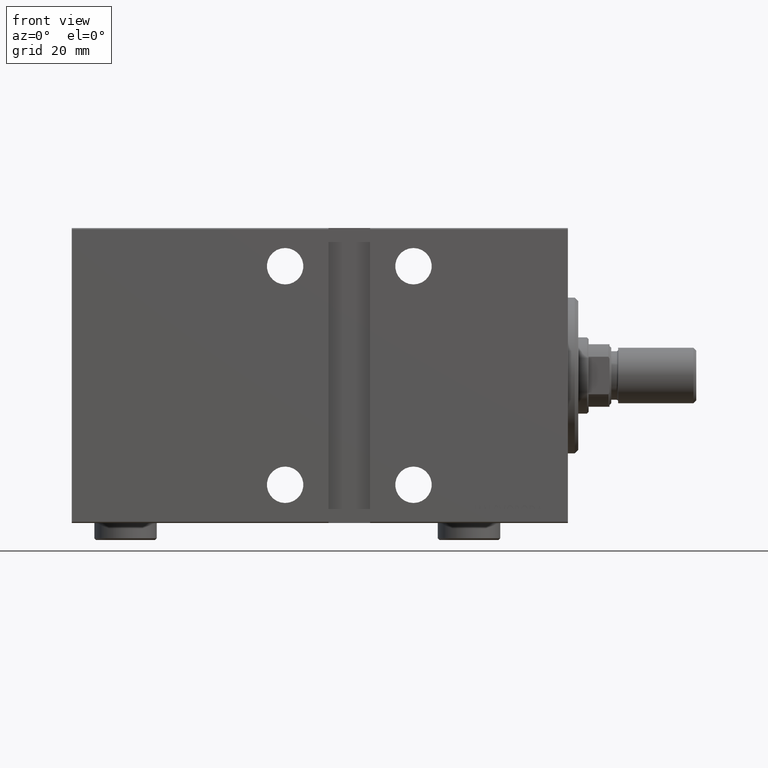
[diagram: clean part render]
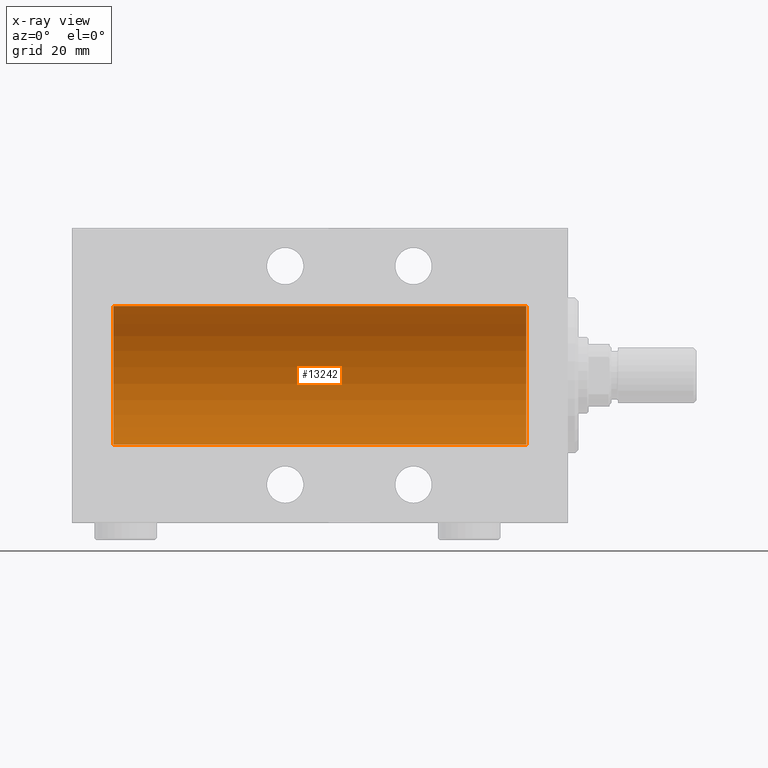
[diagram: x-ray — body ghosted, one internal face saturated and labeled with its STEP entity id]
A machine part, front view, then the same camera in x-ray: the body is ghosted and one INTERNAL B-rep face — a face not visible from any outside direction — is saturated and labeled: STEP entity #13242.
In plain terms, the highlighted cylindrical surface (partial cylindrical patch) has radius 20 mm, axis along (1, 0, -0).
Its self-contained STEP definition (entity closure, byte-faithful):
#482 = VERTEX_POINT ( 'NONE', #10419 ) ;
#3122 = CARTESIAN_POINT ( 'NONE',  ( 131.0000000000000000, 0.000000000000000000, 0.000000000000000000 ) ) ;
#3357 = VECTOR ( 'NONE', #9684, 1000.000000000000000 ) ;
#4131 = CARTESIAN_POINT ( 'NONE',  ( 131.0000000000000000, 0.000000000000000000, 20.00000000000000000 ) ) ;
#5108 = ORIENTED_EDGE ( 'NONE', *, *, #5417, .T. ) ;
#5417 = EDGE_CURVE ( 'NONE', #8531, #19447, #21152, .T. ) ;
#6257 = DIRECTION ( 'NONE',  ( 0.000000000000000000, 0.000000000000000000, 1.000000000000000000 ) ) ;
#7142 = CYLINDRICAL_SURFACE ( 'NONE', #7538, 20.00000000000000000 ) ;
#7183 = VECTOR ( 'NONE', #20943, 1000.000000000000000 ) ;
#7538 = AXIS2_PLACEMENT_3D ( 'NONE', #3122, #27120, #6257 ) ;
#7928 = CARTESIAN_POINT ( 'NONE',  ( 11.99999999999999645, 2.449293598294706513E-15, -20.00000000000000000 ) ) ;
#7933 = LINE ( 'NONE', #4131, #7183 ) ;
#8531 = VERTEX_POINT ( 'NONE', #7928 ) ;
#8622 = VERTEX_POINT ( 'NONE', #43979 ) ;
#9684 = DIRECTION ( 'NONE',  ( -1.000000000000000000, -0.000000000000000000, -0.000000000000000000 ) ) ;
#10041 = CARTESIAN_POINT ( 'NONE',  ( 11.99999999999999645, 0.000000000000000000, 0.000000000000000000 ) ) ;
#10419 = CARTESIAN_POINT ( 'NONE',  ( 131.0000000000000000, 0.000000000000000000, 20.00000000000000000 ) ) ;
#11039 = CARTESIAN_POINT ( 'NONE',  ( 131.0000000000000000, 0.000000000000000000, 0.000000000000000000 ) ) ;
#11848 = AXIS2_PLACEMENT_3D ( 'NONE', #10041, #17219, #33366 ) ;
#13242 = ADVANCED_FACE ( 'NONE', ( #13656 ), #7142, .F. ) ;
#13656 = FACE_OUTER_BOUND ( 'NONE', #39660, .T. ) ;
#15330 = ORIENTED_EDGE ( 'NONE', *, *, #19904, .F. ) ;
#15692 = CARTESIAN_POINT ( 'NONE',  ( 11.99999999999999645, 0.000000000000000000, 20.00000000000000000 ) ) ;
#17219 = DIRECTION ( 'NONE',  ( -1.000000000000000000, 0.000000000000000000, 0.000000000000000000 ) ) ;
#17264 = EDGE_CURVE ( 'NONE', #8622, #8531, #37233, .T. ) ;
#19325 = ORIENTED_EDGE ( 'NONE', *, *, #30804, .F. ) ;
#19447 = VERTEX_POINT ( 'NONE', #15692 ) ;
#19770 = ORIENTED_EDGE ( 'NONE', *, *, #17264, .T. ) ;
#19904 = EDGE_CURVE ( 'NONE', #8622, #482, #43512, .T. ) ;
#20943 = DIRECTION ( 'NONE',  ( -1.000000000000000000, -0.000000000000000000, -0.000000000000000000 ) ) ;
#21152 = CIRCLE ( 'NONE', #11848, 20.00000000000000000 ) ;
#27120 = DIRECTION ( 'NONE',  ( -1.000000000000000000, -0.000000000000000000, -0.000000000000000000 ) ) ;
#28308 = DIRECTION ( 'NONE',  ( -1.000000000000000000, 0.000000000000000000, 0.000000000000000000 ) ) ;
#30087 = CARTESIAN_POINT ( 'NONE',  ( 131.0000000000000000, 2.449293598294706513E-15, -20.00000000000000000 ) ) ;
#30804 = EDGE_CURVE ( 'NONE', #482, #19447, #7933, .T. ) ;
#33366 = DIRECTION ( 'NONE',  ( 0.000000000000000000, 0.000000000000000000, 1.000000000000000000 ) ) ;
#37233 = LINE ( 'NONE', #30087, #3357 ) ;
#39218 = AXIS2_PLACEMENT_3D ( 'NONE', #11039, #28308, #41958 ) ;
#39660 = EDGE_LOOP ( 'NONE', ( #15330, #19770, #5108, #19325 ) ) ;
#41958 = DIRECTION ( 'NONE',  ( 0.000000000000000000, 0.000000000000000000, 1.000000000000000000 ) ) ;
#43512 = CIRCLE ( 'NONE', #39218, 20.00000000000000000 ) ;
#43979 = CARTESIAN_POINT ( 'NONE',  ( 131.0000000000000000, 2.449293598294706513E-15, -20.00000000000000000 ) ) ;